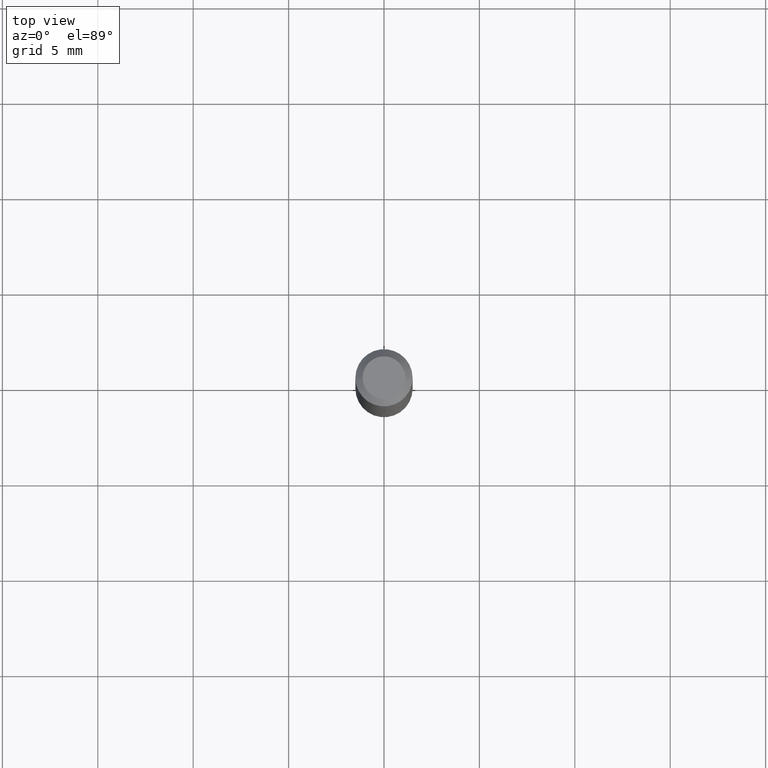
[diagram: clean part render]
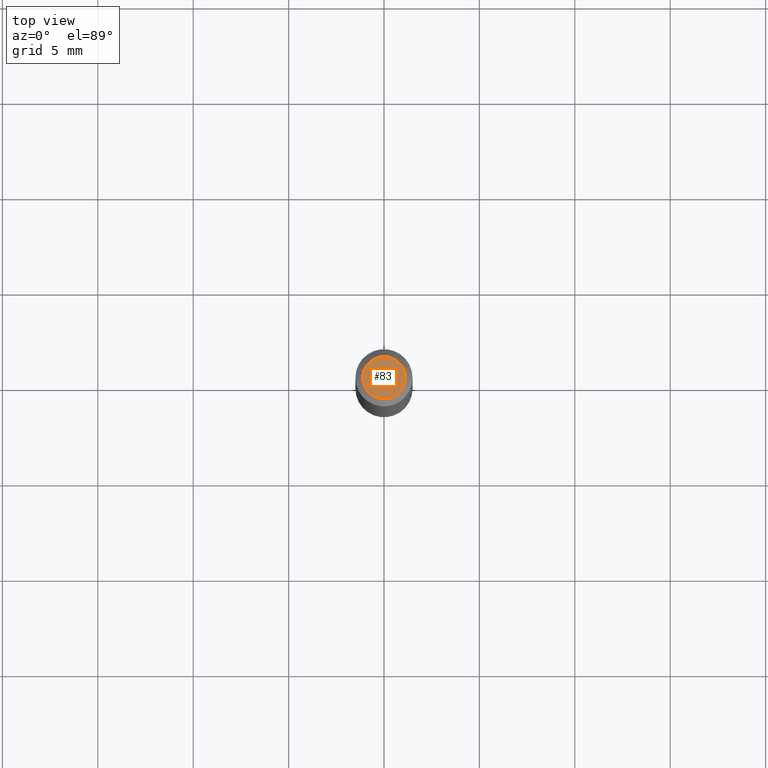
[diagram: same view with one face highlighted and labeled with its STEP entity id]
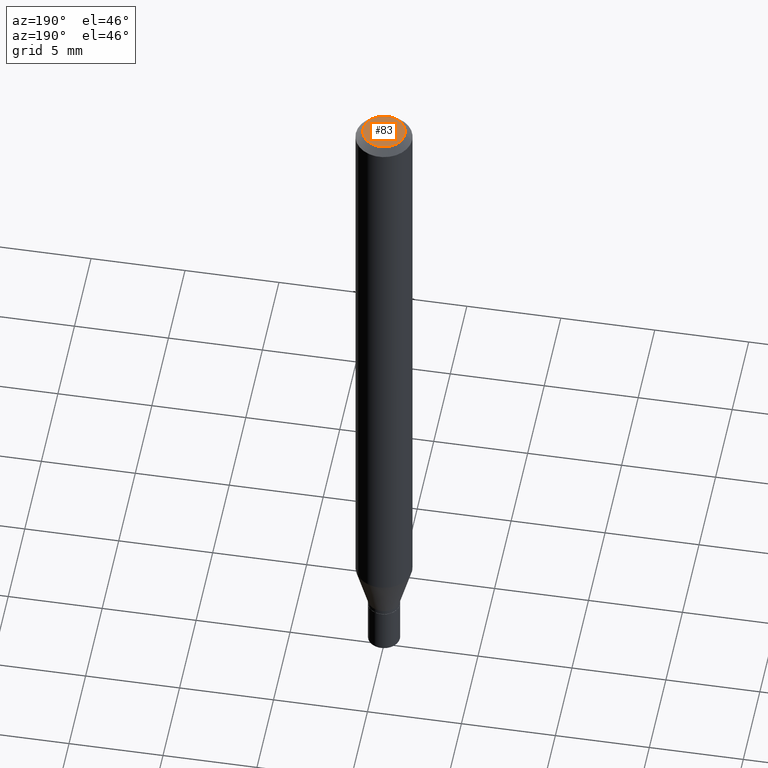
[diagram: same view with one face highlighted and labeled with its STEP entity id]
A machine part, top view. The second image highlights one B-rep face of the part: STEP entity #83.
A second angle (auxiliary view) of the same face is appended — the face is thin or edge-on in the first view.
In plain terms, the highlighted planar face has unit normal (0, -0, -1).
Its self-contained STEP definition (entity closure, byte-faithful):
#20 = CARTESIAN_POINT ( 'NONE',  ( 3.075995059520799729E-16, 0.04404999999999999888, -2.547080602766185685E-16 ) ) ;
#33 = DIRECTION ( 'NONE',  ( -2.445468806185136597E-29, 3.491481338843145583E-15, 1.000000000000000000 ) ) ;
#68 = DIRECTION ( 'NONE',  ( 1.000000000000000000, -6.982962677686265922E-15, 4.888540261209747396E-29 ) ) ;
#83 = ADVANCED_FACE ( 'NONE', ( #311 ), #207, .F. ) ;
#85 = VERTEX_POINT ( 'NONE', #125 ) ;
#112 = DIRECTION ( 'NONE',  ( -2.445468806185136597E-29, 3.491481338843145583E-15, 1.000000000000000000 ) ) ;
#125 = CARTESIAN_POINT ( 'NONE',  ( -0.04404999999999999888, 3.337856159934031180E-16, -2.018166146011582981E-16 ) ) ;
#143 = AXIS2_PLACEMENT_3D ( 'NONE', #361, #33, #68 ) ;
#154 = ORIENTED_EDGE ( 'NONE', *, *, #322, .T. ) ;
#191 = CIRCLE ( 'NONE', #143, 0.04404999999999999888 ) ;
#193 = CARTESIAN_POINT ( 'NONE',  ( 4.935362355770148873E-45, -7.046389437484354328E-31, -2.018166146011560548E-16 ) ) ;
#207 = PLANE ( 'NONE',  #292 ) ;
#233 = AXIS2_PLACEMENT_3D ( 'NONE', #193, #112, #299 ) ;
#286 = EDGE_LOOP ( 'NONE', ( #154, #440 ) ) ;
#292 = AXIS2_PLACEMENT_3D ( 'NONE', #20, #450, #391 ) ;
#298 = EDGE_CURVE ( 'NONE', #442, #85, #191, .T. ) ;
#299 = DIRECTION ( 'NONE',  ( 1.000000000000000000, -6.982962677686265922E-15, 4.888540261209747396E-29 ) ) ;
#311 = FACE_OUTER_BOUND ( 'NONE', #286, .T. ) ;
#322 = EDGE_CURVE ( 'NONE', #85, #442, #372, .T. ) ;
#361 = CARTESIAN_POINT ( 'NONE',  ( 4.935362355770148873E-45, -7.046389437484354328E-31, -2.018166146011560548E-16 ) ) ;
#368 = CARTESIAN_POINT ( 'NONE',  ( 0.04404999999999999888, -3.798447818264464023E-16, -2.018166146011536389E-16 ) ) ;
#372 = CIRCLE ( 'NONE', #233, 0.04404999999999999888 ) ;
#391 = DIRECTION ( 'NONE',  ( -1.000000000000000000, 6.982962677686265922E-15, -4.876176775795935793E-29 ) ) ;
#440 = ORIENTED_EDGE ( 'NONE', *, *, #298, .T. ) ;
#442 = VERTEX_POINT ( 'NONE', #368 ) ;
#450 = DIRECTION ( 'NONE',  ( 2.438088387897960049E-29, -3.491481338843145188E-15, -1.000000000000000000 ) ) ;